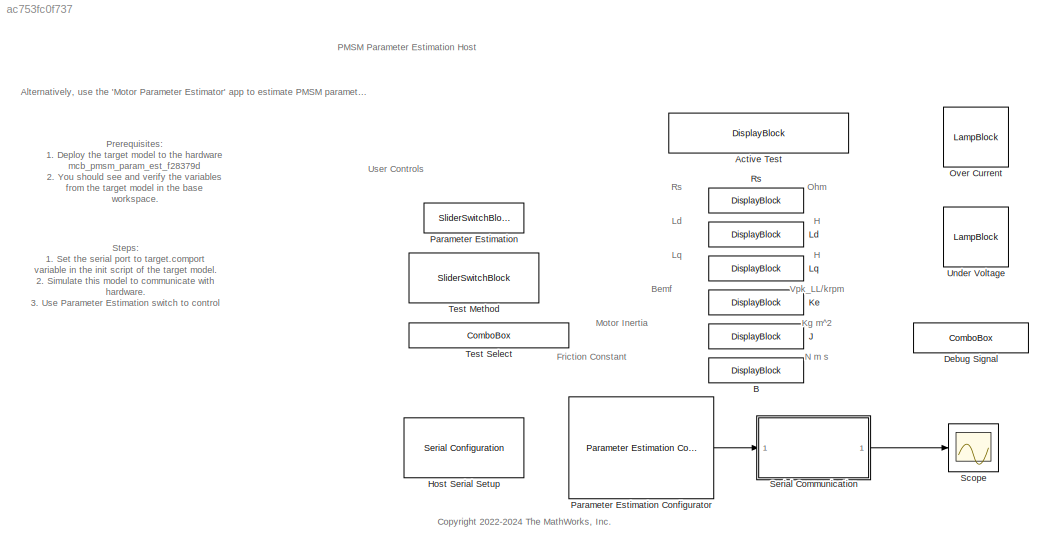
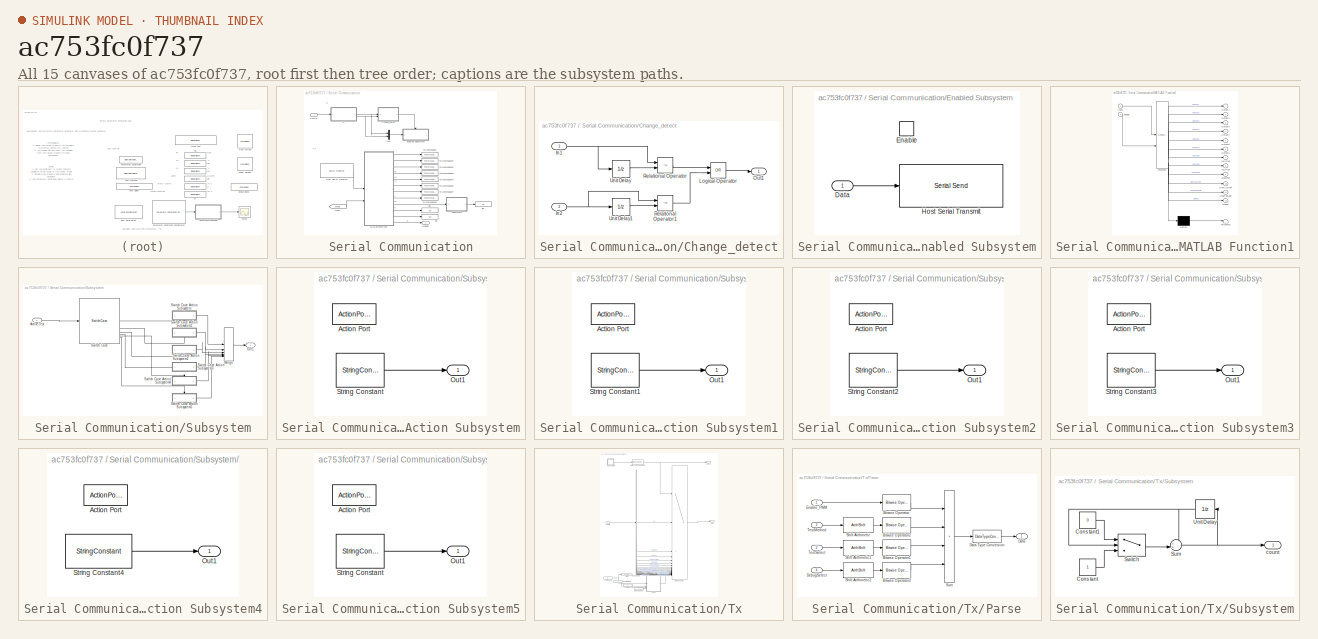
[diagram: thumbnail index - all 15 canvases of the model, root first then tree order]
MODEL slx_ac753fc0f737
KIND model
CONFIG AbsTol = auto
CONFIG EnableMultiTasking = on
CONFIG FixedStep = auto
CONFIG MaxStep = auto
CONFIG MinStep = auto
CONFIG RelTol = 1e-3
CONFIG SampleTimeConstraint = Unconstrained
CONFIG SolverName = FixedStepDiscrete
CONFIG StartTime = 0.0
CONFIG StopFcn = motorParam.p = motor.p;\nmotorParam.nomCurrent = motor.I_rated;\nmotorParam.PositionOffset = motor.PositionOffset;\nmotorParam.QEPSlits = motor.QEPSlits;\nmcb_param_est_StopFunc(bdroot);
CONFIG StopTime = inf
BLOCK [DisplayBlock] Active Test
  LabelPosition = Hide
  Transparency = 1
BLOCK [DisplayBlock] B
  LabelPosition = Hide
  Transparency = 1
BLOCK [ComboBox] Debug Signal
  LabelPosition = Hide
  SelectedLabel = Ia
BLOCK [Reference] Host Serial Setup  REF=instrumentseriallib/Serial Configuration
  LibrarySourceBlock = mcblib/Protection and Diagnostics/Host Serial Setup
  Priority = -99
  SourceBlock = instrumentseriallib/Serial Configuration
  SourceType = system.SerialConfiguration
BLOCK [DisplayBlock] J
  LabelPosition = Hide
  Transparency = 1
BLOCK [DisplayBlock] Ke
  LabelPosition = Hide
  Transparency = 1
BLOCK [DisplayBlock] Ld
  LabelPosition = Hide
  Transparency = 1
BLOCK [DisplayBlock] Lq
  LabelPosition = Hide
  Transparency = 1
BLOCK [LampBlock] Over Current
  LabelPosition = Hide
BLOCK [SliderSwitchBlock] Parameter Estimation
  LabelPosition = Hide
BLOCK [Reference] Parameter Estimation Configurator  REF=mcbpmsmparamestlib/Parameter Estimation Configurator
  LibrarySourceBlock = mcblib/Parameter Estimation/PMSM Parameter Estimation/Parameter Estimation Configurator
  SourceBlock = mcbpmsmparamestlib/Parameter Estimation Configurator
  SourceType = PMSM Parameter Estimation Configurator
BLOCK [DisplayBlock] Rs
  LabelPosition = Hide
  Transparency = 1
BLOCK [Scope] Scope
  Floating = off
  NumInputPorts = 1
  ScopeSpecificationString = Simulink.scopes.TimeScopeBlockCfg('CurrentConfiguration', extmgr.ConfigurationSet(extmgr.Configuration('Core','General UI',true),extmgr.Configuration('Core','Source UI',true),extmgr.Configuration('Sources','WiredSimulink',true),extmgr.Configuration('Visuals','Time Domain',true,'InputProcessing','FrameProcessing','SerializedDisplays',{struct('MinYLimReal','-27.19762','MaxYLimReal','3.06862','YLabel...<+1457ch>
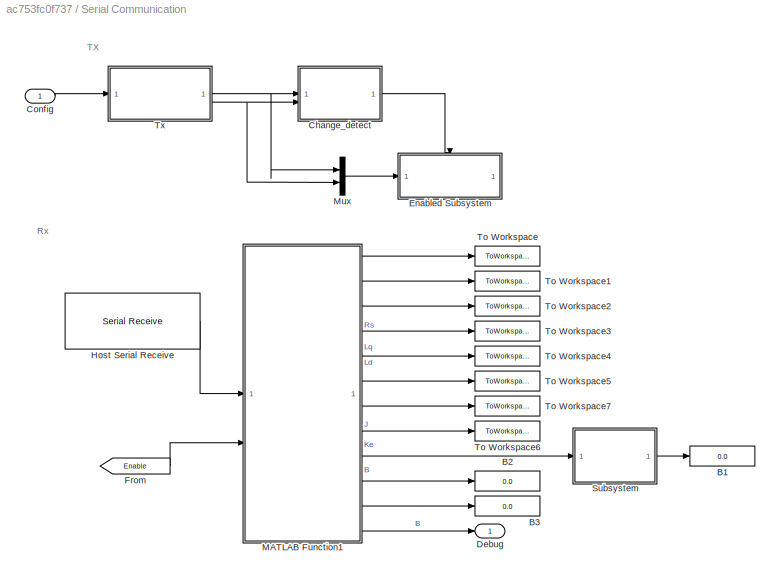
BLOCK [SubSystem] Serial Communication
BLOCK [Display] Serial Communication/B1
  Decimation = 1
BLOCK [Display] Serial Communication/B2
  Decimation = 1
BLOCK [Display] Serial Communication/B3
  Decimation = 1
BLOCK [SubSystem] Serial Communication/Change_detect
BLOCK [Inport] Serial Communication/Change_detect/In1
BLOCK [Inport] Serial Communication/Change_detect/In2
  Port = 2
BLOCK [Logic] Serial Communication/Change_detect/Logical Operator
  AllPortsSameDT = off
  Operator = OR
  OutDataTypeStr = boolean
BLOCK [Outport] Serial Communication/Change_detect/Out1
  VectorParamsAs1DForOutWhenUnconnected = off
BLOCK [RelationalOperator] Serial Communication/Change_detect/Relational Operator
  InputSameDT = off
  Operator = ~=
  OutDataTypeStr = boolean
BLOCK [RelationalOperator] Serial Communication/Change_detect/Relational Operator1
  InputSameDT = off
  Operator = ~=
  OutDataTypeStr = boolean
BLOCK [UnitDelay] Serial Communication/Change_detect/Unit Delay
  HasFrameUpgradeWarning = on
  InitialCondition = 0.5
  SampleTime = -1
BLOCK [UnitDelay] Serial Communication/Change_detect/Unit Delay1
  HasFrameUpgradeWarning = on
  SampleTime = -1
BLOCK [Inport] Serial Communication/Config
BLOCK [Outport] Serial Communication/Debug
BLOCK [SubSystem] Serial Communication/Enabled Subsystem
  TreatAsAtomicUnit = on
BLOCK [Inport] Serial Communication/Enabled Subsystem/Data
BLOCK [EnablePort] Serial Communication/Enabled Subsystem/Enable
BLOCK [Reference] Serial Communication/Enabled Subsystem/Host Serial Transmit  REF=instrumentseriallib/Serial Send
  LibrarySourceBlock = mcblib/Protection and Diagnostics/Host Serial Transmit
  SourceBlock = instrumentseriallib/Serial Send
  SourceType = system.SerialSend
BLOCK [From] Serial Communication/From
  GotoTag = Enable
  TagVisibility = global
BLOCK [Reference] Serial Communication/Host Serial Receive  REF=instrumentseriallib/Serial Receive
  LibrarySourceBlock = mcblib/Protection and Diagnostics/Host Serial Receive
  SourceBlock = instrumentseriallib/Serial Receive
  SourceType = system.SerialReceive
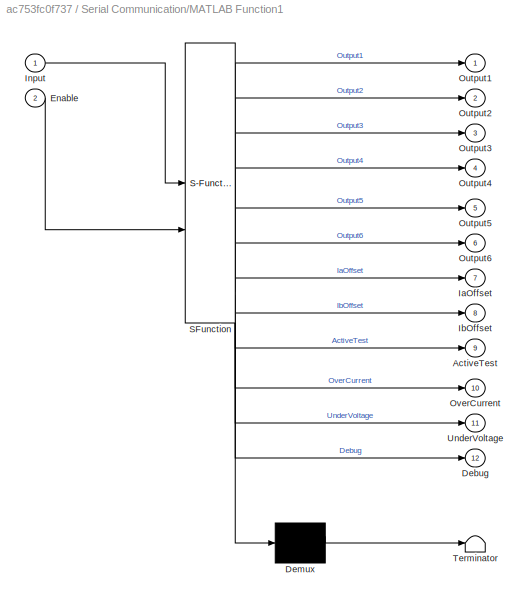
BLOCK [SubSystem] Serial Communication/MATLAB Function1
  ErrorFcn = Stateflow.Translate.translate
  PermitHierarchicalResolution = ExplicitOnly
  SFBlockType = MATLAB Function
  TreatAsAtomicUnit = on
BLOCK [Demux] Serial Communication/MATLAB Function1/ Demux 
  Outputs = 1
BLOCK [S-Function] Serial Communication/MATLAB Function1/ SFunction 
  EnableBusSupport = off
  FunctionName = sf_sfun
  PortCounts = [2 13]
  SFcnIsStateOwnerBlock = off
  SFunctionDeploymentMode = off
  Tag = Stateflow S-Function 2
BLOCK [Terminator] Serial Communication/MATLAB Function1/ Terminator 
BLOCK [Outport] Serial Communication/MATLAB Function1/ActiveTest
  Port = 9
BLOCK [Outport] Serial Communication/MATLAB Function1/Debug
  Port = 12
BLOCK [Inport] Serial Communication/MATLAB Function1/Enable
  Port = 2
BLOCK [Outport] Serial Communication/MATLAB Function1/IaOffset
  Port = 7
BLOCK [Outport] Serial Communication/MATLAB Function1/IbOffset
  Port = 8
BLOCK [Inport] Serial Communication/MATLAB Function1/Input
BLOCK [Outport] Serial Communication/MATLAB Function1/Output1
BLOCK [Outport] Serial Communication/MATLAB Function1/Output2
  Port = 2
BLOCK [Outport] Serial Communication/MATLAB Function1/Output3
  Port = 3
BLOCK [Outport] Serial Communication/MATLAB Function1/Output4
  Port = 4
BLOCK [Outport] Serial Communication/MATLAB Function1/Output5
  Port = 5
BLOCK [Outport] Serial Communication/MATLAB Function1/Output6
  Port = 6
BLOCK [Outport] Serial Communication/MATLAB Function1/OverCurrent
  Port = 10
BLOCK [Outport] Serial Communication/MATLAB Function1/UnderVoltage
  Port = 11
BLOCK [Mux] Serial Communication/Mux
  DisplayOption = bar
  Inputs = 2
BLOCK [SubSystem] Serial Communication/Subsystem
BLOCK [Inport] Serial Communication/Subsystem/ActiveTest
BLOCK [Merge] Serial Communication/Subsystem/Merge
  Inputs = 6
BLOCK [Outport] Serial Communication/Subsystem/Out1
BLOCK [SwitchCase] Serial Communication/Subsystem/Switch Case
  CaseConditions = {0,1,2,3,4}
BLOCK [SubSystem] Serial Communication/Subsystem/Switch Case Action Subsystem
  TreatAsAtomicUnit = on
BLOCK [ActionPort] Serial Communication/Subsystem/Switch Case Action Subsystem/Action Port
  ActionPortLabel = case [ 0 ]:
BLOCK [Outport] Serial Communication/Subsystem/Switch Case Action Subsystem/Out1
BLOCK [StringConstant] Serial Communication/Subsystem/Switch Case Action Subsystem/String Constant
  String = "Inactive"
BLOCK [SubSystem] Serial Communication/Subsystem/Switch Case Action Subsystem1
  TreatAsAtomicUnit = on
BLOCK [ActionPort] Serial Communication/Subsystem/Switch Case Action Subsystem1/Action Port
  ActionPortLabel = case [ 1 ]:
BLOCK [Outport] Serial Communication/Subsystem/Switch Case Action Subsystem1/Out1
BLOCK [StringConstant] Serial Communication/Subsystem/Switch Case Action Subsystem1/String Constant1
  String = "Rs Test"
BLOCK [SubSystem] Serial Communication/Subsystem/Switch Case Action Subsystem2
  TreatAsAtomicUnit = on
BLOCK [ActionPort] Serial Communication/Subsystem/Switch Case Action Subsystem2/Action Port
  ActionPortLabel = case [ 2 ]:
BLOCK [Outport] Serial Communication/Subsystem/Switch Case Action Subsystem2/Out1
BLOCK [StringConstant] Serial Communication/Subsystem/Switch Case Action Subsystem2/String Constant2
  String = "Ld Test"
BLOCK [SubSystem] Serial Communication/Subsystem/Switch Case Action Subsystem3
  TreatAsAtomicUnit = on
BLOCK [ActionPort] Serial Communication/Subsystem/Switch Case Action Subsystem3/Action Port
  ActionPortLabel = case [ 3 ]:
BLOCK [Outport] Serial Communication/Subsystem/Switch Case Action Subsystem3/Out1
BLOCK [StringConstant] Serial Communication/Subsystem/Switch Case Action Subsystem3/String Constant3
  String = "Lq Test"
BLOCK [SubSystem] Serial Communication/Subsystem/Switch Case Action Subsystem4
  TreatAsAtomicUnit = on
BLOCK [ActionPort] Serial Communication/Subsystem/Switch Case Action Subsystem4/Action Port
  ActionPortLabel = case [ 4 ]:
BLOCK [Outport] Serial Communication/Subsystem/Switch Case Action Subsystem4/Out1
BLOCK [StringConstant] Serial Communication/Subsystem/Switch Case Action Subsystem4/String Constant4
  String = "Ke, J, B Test"
BLOCK [SubSystem] Serial Communication/Subsystem/Switch Case Action Subsystem5
  TreatAsAtomicUnit = on
BLOCK [ActionPort] Serial Communication/Subsystem/Switch Case Action Subsystem5/Action Port
  ActionPortLabel = default:
BLOCK [Outport] Serial Communication/Subsystem/Switch Case Action Subsystem5/Out1
BLOCK [StringConstant] Serial Communication/Subsystem/Switch Case Action Subsystem5/String Constant
  String = "Inactive"
BLOCK [ToWorkspace] Serial Communication/To Workspace
  MaxDataPoints = 1
  SampleTime = -1
  Save2DSignal = 2-D array (concatenate along first dimension)
  VariableName = Rs
BLOCK [ToWorkspace] Serial Communication/To Workspace1
  MaxDataPoints = 1
  SampleTime = -1
  Save2DSignal = 2-D array (concatenate along first dimension)
  VariableName = Ld
BLOCK [ToWorkspace] Serial Communication/To Workspace2
  MaxDataPoints = 1
  SampleTime = -1
  Save2DSignal = 2-D array (concatenate along first dimension)
  VariableName = Lq
BLOCK [ToWorkspace] Serial Communication/To Workspace3
  MaxDataPoints = 1
  SampleTime = -1
  Save2DSignal = 2-D array (concatenate along first dimension)
  VariableName = Ke
BLOCK [ToWorkspace] Serial Communication/To Workspace4
  MaxDataPoints = 1
  SampleTime = -1
  Save2DSignal = 2-D array (concatenate along first dimension)
  VariableName = J
BLOCK [ToWorkspace] Serial Communication/To Workspace5
  MaxDataPoints = 1
  SampleTime = -1
  Save2DSignal = 2-D array (concatenate along first dimension)
  VariableName = B
BLOCK [ToWorkspace] Serial Communication/To Workspace6
  MaxDataPoints = 1
  SampleTime = -1
  Save2DSignal = 2-D array (concatenate along first dimension)
  VariableName = Ib_avg_cal
BLOCK [ToWorkspace] Serial Communication/To Workspace7
  MaxDataPoints = 1
  SampleTime = -1
  Save2DSignal = 2-D array (concatenate along first dimension)
  VariableName = Ia_avg_cal
BLOCK [SubSystem] Serial Communication/Tx
BLOCK [BusSelector] Serial Communication/Tx/Bus Selector
  OutputSignals = P,NRated,IRated,ImaxInverter,RBoard,ISenseGain,VSenseGain,Ts,FreqMax,FreqMin,FreqStepSweep,FreqStepEst,FreqNum,KeTime,KeSpeed,KpKiInputEnable,Kp,Ki,IqRefFoc,JSpeedLow,CurrMeasDelay
BLOCK [Inport] Serial Communication/Tx/Config
BLOCK [Outport] Serial Communication/Tx/Count
BLOCK [Outport] Serial Communication/Tx/Data
  Port = 2
BLOCK [DataTypeConversion] Serial Communication/Tx/Data Type Conversion
  OutDataTypeStr = dataType
  RndMeth = Simplest
  SaturateOnIntegerOverflow = off
BLOCK [Constant] Serial Communication/Tx/Debug Select
  OutDataTypeStr = uint16
  SampleTime = 600 * Ts
BLOCK [Goto] Serial Communication/Tx/Goto
  GotoTag = Enable
  TagVisibility = global
BLOCK [MultiPortSwitch] Serial Communication/Tx/Index Vector
  InputSameDT = off
  Inputs = 22
  OutDataTypeStr = dataType
  RndMeth = Simplest
  SaturateOnIntegerOverflow = off
BLOCK [SubSystem] Serial Communication/Tx/Parse
BLOCK [Reference] Serial Communication/Tx/Parse/Bitwise Operator  REF=simulink/Logic and Bit
Operations/Bitwise
Operator
  SourceBlock = simulink/Logic and Bit\nOperations/Bitwise\nOperator
  SourceType = Bitwise Operator
BLOCK [Reference] Serial Communication/Tx/Parse/Bitwise Operator1  REF=simulink/Logic and Bit
Operations/Bitwise
Operator
  SourceBlock = simulink/Logic and Bit\nOperations/Bitwise\nOperator
  SourceType = Bitwise Operator
BLOCK [Reference] Serial Communication/Tx/Parse/Bitwise Operator2  REF=simulink/Logic and Bit
Operations/Bitwise
Operator
  SourceBlock = simulink/Logic and Bit\nOperations/Bitwise\nOperator
  SourceType = Bitwise Operator
BLOCK [Reference] Serial Communication/Tx/Parse/Bitwise Operator3  REF=simulink/Logic and Bit
Operations/Bitwise
Operator
  SourceBlock = simulink/Logic and Bit\nOperations/Bitwise\nOperator
  SourceType = Bitwise Operator
BLOCK [Outport] Serial Communication/Tx/Parse/Data
BLOCK [DataTypeConversion] Serial Communication/Tx/Parse/Data Type Conversion
  OutDataTypeStr = dataType
  RndMeth = Simplest
  SaturateOnIntegerOverflow = off
BLOCK [Inport] Serial Communication/Tx/Parse/DebugSelect
  Port = 4
BLOCK [Inport] Serial Communication/Tx/Parse/Enable_PWM
BLOCK [ArithShift] Serial Communication/Tx/Parse/Shift Arithmetic
  BitShiftNumber = -1
  InputPortMap = u0
BLOCK [ArithShift] Serial Communication/Tx/Parse/Shift Arithmetic1
  BitShiftNumber = -4
  InputPortMap = u0
BLOCK [ArithShift] Serial Communication/Tx/Parse/Shift Arithmetic2
  BitShiftNumber = -8
  InputPortMap = u0
BLOCK [Sum] Serial Communication/Tx/Parse/Sum
  IconShape = rectangular
  Inputs = ++++
BLOCK [Inport] Serial Communication/Tx/Parse/TestMethod
  Port = 2
BLOCK [Inport] Serial Communication/Tx/Parse/TestSelect
  Port = 3
BLOCK [SubSystem] Serial Communication/Tx/Subsystem
BLOCK [Constant] Serial Communication/Tx/Subsystem/Constant
  OutDataTypeStr = uint8
  SampleTime = sampleTime
BLOCK [Constant] Serial Communication/Tx/Subsystem/Constant1
  OutDataTypeStr = uint8
  SampleTime = sampleTime
  Value = 0
BLOCK [Sum] Serial Communication/Tx/Subsystem/Sum
  AccumDataTypeStr = uint8
  Inputs = ++|
  OutDataTypeStr = uint8
  RndMeth = Simplest
BLOCK [Switch] Serial Communication/Tx/Subsystem/Switch
  Criteria = u2 > Threshold
  InputSameDT = off
  OutDataTypeStr = uint8
  RndMeth = Simplest
  SaturateOnIntegerOverflow = off
  Threshold = upperLimit-1
BLOCK [UnitDelay] Serial Communication/Tx/Subsystem/Unit Delay
  HasFrameUpgradeWarning = on
  SampleTime = -1
BLOCK [Outport] Serial Communication/Tx/Subsystem/count
BLOCK [Constant] Serial Communication/Tx/Test Enable
  OutDataTypeStr = uint16
  SampleTime = 600 * Ts
  Value = 0
  VectorParams1D = off
BLOCK [Constant] Serial Communication/Tx/Test Method
  OutDataTypeStr = uint16
  SampleTime = 600 * Ts
  VectorParams1D = off
BLOCK [Constant] Serial Communication/Tx/Test Select
  OutDataTypeStr = uint16
  SampleTime = 600 * Ts
  Value = 0
BLOCK [SliderSwitchBlock] Test Method
  LabelPosition = Hide
BLOCK [ComboBox] Test Select
  LabelPosition = Hide
  SelectedLabel = No Test
BLOCK [LampBlock] Under Voltage
  LabelPosition = Hide
ANNOTATION (root): PMSM Parameter Estimation Host
ANNOTATION (root): <copyright redacted>
ANNOTATION (root): Alternatively, use the 'Motor Parameter Estimator' app to estimate PMSM parameters on hardware with ease through a unified interface. The app is available under 'Apps > Control Systems' in the Simulink toolstrip.
ANNOTATION (root): Prerequisites: 1. Deploy the target model to the hardware mcb_pmsm_param_est_f28379d 2. You should see and verify the variables from the target model in the base workspace.
ANNOTATION (root): Steps: 1. Set the serial port to target.comport variable in the init script of the target model. 2. Simulate this model to communicate with hardware. 3. Use Parameter Estimation switch to control the parameter estimation tests. 4. Run parameter estimation tests sequentially by selecting Auto for Test Method switch. 5. Select Manual to run the tests individually by selecting in Test Selection radio...<+219ch>
ANNOTATION (root): Bemf
ANNOTATION (root): Friction Constant
ANNOTATION (root): Ld
ANNOTATION (root): Lq
ANNOTATION (root): Motor Inertia
ANNOTATION (root): Rs
ANNOTATION (root): H
ANNOTATION (root): Kg m^2
ANNOTATION (root): N m s
ANNOTATION (root): Ohm
ANNOTATION (root): Vpk_LL/krpm
ANNOTATION (root): User Controls
ANNOTATION Serial Communication: Rx
ANNOTATION Serial Communication: TX
LINE Parameter Estimation Configurator:1 -> Serial Communication:1
NET Serial Communication/Change_detect/In1:1 -> Serial Communication/Change_detect/Relational Operator:1, Serial Communication/Change_detect/Unit Delay:1
NET Serial Communication/Change_detect/In2:1 -> Serial Communication/Change_detect/Relational Operator1:1, Serial Communication/Change_detect/Unit Delay1:1
LINE Serial Communication/Change_detect/Logical Operator:1 -> Serial Communication/Change_detect/Out1:1
LINE Serial Communication/Change_detect/Relational Operator1:1 -> Serial Communication/Change_detect/Logical Operator:2
LINE Serial Communication/Change_detect/Relational Operator:1 -> Serial Communication/Change_detect/Logical Operator:1
LINE Serial Communication/Change_detect/Unit Delay1:1 -> Serial Communication/Change_detect/Relational Operator1:2
LINE Serial Communication/Change_detect/Unit Delay:1 -> Serial Communication/Change_detect/Relational Operator:2
LINE Serial Communication/Change_detect:1 -> Serial Communication/Enabled Subsystem:enable
LINE Serial Communication/Config:1 -> Serial Communication/Tx:1
LINE Serial Communication/Enabled Subsystem/Data:1 -> Serial Communication/Enabled Subsystem/Host Serial Transmit:1
LINE Serial Communication/From:1 -> Serial Communication/MATLAB Function1:2
LINE Serial Communication/Host Serial Receive:1 -> Serial Communication/MATLAB Function1:1
LINE Serial Communication/MATLAB Function1:1 -> Serial Communication/To Workspace:1
LINE Serial Communication/MATLAB Function1:10 -> Serial Communication/B2:1
LINE Serial Communication/MATLAB Function1:11 -> Serial Communication/B3:1
LINE Serial Communication/MATLAB Function1:12 -> Serial Communication/Debug:1
LINE Serial Communication/MATLAB Function1:2 -> Serial Communication/To Workspace1:1
LINE Serial Communication/MATLAB Function1:3 -> Serial Communication/To Workspace2:1
LINE Serial Communication/MATLAB Function1:4 -> Serial Communication/To Workspace3:1
LINE Serial Communication/MATLAB Function1:5 -> Serial Communication/To Workspace4:1
LINE Serial Communication/MATLAB Function1:6 -> Serial Communication/To Workspace5:1
LINE Serial Communication/MATLAB Function1:7 -> Serial Communication/To Workspace7:1
LINE Serial Communication/MATLAB Function1:8 -> Serial Communication/To Workspace6:1
LINE Serial Communication/MATLAB Function1:9 -> Serial Communication/Subsystem:1
LINE Serial Communication/Mux:1 -> Serial Communication/Enabled Subsystem:1
LINE Serial Communication/Subsystem/ActiveTest:1 -> Serial Communication/Subsystem/Switch Case:1
LINE Serial Communication/Subsystem/Merge:1 -> Serial Communication/Subsystem/Out1:1
LINE Serial Communication/Subsystem/Switch Case Action Subsystem/String Constant:1 -> Serial Communication/Subsystem/Switch Case Action Subsystem/Out1:1
LINE Serial Communication/Subsystem/Switch Case Action Subsystem1/String Constant1:1 -> Serial Communication/Subsystem/Switch Case Action Subsystem1/Out1:1
LINE Serial Communication/Subsystem/Switch Case Action Subsystem1:1 -> Serial Communication/Subsystem/Merge:2
LINE Serial Communication/Subsystem/Switch Case Action Subsystem2/String Constant2:1 -> Serial Communication/Subsystem/Switch Case Action Subsystem2/Out1:1
LINE Serial Communication/Subsystem/Switch Case Action Subsystem2:1 -> Serial Communication/Subsystem/Merge:3
LINE Serial Communication/Subsystem/Switch Case Action Subsystem3/String Constant3:1 -> Serial Communication/Subsystem/Switch Case Action Subsystem3/Out1:1
LINE Serial Communication/Subsystem/Switch Case Action Subsystem3:1 -> Serial Communication/Subsystem/Merge:4
LINE Serial Communication/Subsystem/Switch Case Action Subsystem4/String Constant4:1 -> Serial Communication/Subsystem/Switch Case Action Subsystem4/Out1:1
LINE Serial Communication/Subsystem/Switch Case Action Subsystem4:1 -> Serial Communication/Subsystem/Merge:5
LINE Serial Communication/Subsystem/Switch Case Action Subsystem5/String Constant:1 -> Serial Communication/Subsystem/Switch Case Action Subsystem5/Out1:1
LINE Serial Communication/Subsystem/Switch Case Action Subsystem5:1 -> Serial Communication/Subsystem/Merge:6
LINE Serial Communication/Subsystem/Switch Case Action Subsystem:1 -> Serial Communication/Subsystem/Merge:1
LINE Serial Communication/Subsystem/Switch Case:1 -> Serial Communication/Subsystem/Switch Case Action Subsystem:ifaction
LINE Serial Communication/Subsystem/Switch Case:2 -> Serial Communication/Subsystem/Switch Case Action Subsystem1:ifaction
LINE Serial Communication/Subsystem/Switch Case:3 -> Serial Communication/Subsystem/Switch Case Action Subsystem2:ifaction
LINE Serial Communication/Subsystem/Switch Case:4 -> Serial Communication/Subsystem/Switch Case Action Subsystem3:ifaction
LINE Serial Communication/Subsystem/Switch Case:5 -> Serial Communication/Subsystem/Switch Case Action Subsystem4:ifaction
LINE Serial Communication/Subsystem/Switch Case:6 -> Serial Communication/Subsystem/Switch Case Action Subsystem5:ifaction
LINE Serial Communication/Subsystem:1 -> Serial Communication/B1:1
LINE Serial Communication/Tx/Bus Selector:1 -> Serial Communication/Tx/Index Vector:2
LINE Serial Communication/Tx/Bus Selector:10 -> Serial Communication/Tx/Index Vector:11
LINE Serial Communication/Tx/Bus Selector:11 -> Serial Communication/Tx/Index Vector:12
LINE Serial Communication/Tx/Bus Selector:12 -> Serial Communication/Tx/Index Vector:13
LINE Serial Communication/Tx/Bus Selector:13 -> Serial Communication/Tx/Index Vector:14
LINE Serial Communication/Tx/Bus Selector:14 -> Serial Communication/Tx/Index Vector:15
LINE Serial Communication/Tx/Bus Selector:15 -> Serial Communication/Tx/Index Vector:16
LINE Serial Communication/Tx/Bus Selector:16 -> Serial Communication/Tx/Index Vector:17
LINE Serial Communication/Tx/Bus Selector:17 -> Serial Communication/Tx/Index Vector:18
LINE Serial Communication/Tx/Bus Selector:18 -> Serial Communication/Tx/Index Vector:19
LINE Serial Communication/Tx/Bus Selector:19 -> Serial Communication/Tx/Index Vector:20
LINE Serial Communication/Tx/Bus Selector:2 -> Serial Communication/Tx/Index Vector:3
LINE Serial Communication/Tx/Bus Selector:20 -> Serial Communication/Tx/Index Vector:21
LINE Serial Communication/Tx/Bus Selector:21 -> Serial Communication/Tx/Index Vector:22
LINE Serial Communication/Tx/Bus Selector:3 -> Serial Communication/Tx/Index Vector:4
LINE Serial Communication/Tx/Bus Selector:4 -> Serial Communication/Tx/Index Vector:5
LINE Serial Communication/Tx/Bus Selector:5 -> Serial Communication/Tx/Index Vector:6
LINE Serial Communication/Tx/Bus Selector:6 -> Serial Communication/Tx/Index Vector:7
LINE Serial Communication/Tx/Bus Selector:7 -> Serial Communication/Tx/Index Vector:8
LINE Serial Communication/Tx/Bus Selector:8 -> Serial Communication/Tx/Index Vector:9
LINE Serial Communication/Tx/Bus Selector:9 -> Serial Communication/Tx/Index Vector:10
LINE Serial Communication/Tx/Config:1 -> Serial Communication/Tx/Bus Selector:1
NET Serial Communication/Tx/Data Type Conversion:1 -> Serial Communication/Tx/Count:1, Serial Communication/Tx/Index Vector:1
LINE Serial Communication/Tx/Debug Select:1 -> Serial Communication/Tx/Parse:4
LINE Serial Communication/Tx/Index Vector:1 -> Serial Communication/Tx/Data:1
LINE Serial Communication/Tx/Parse/Bitwise Operator1:1 -> Serial Communication/Tx/Parse/Sum:3
LINE Serial Communication/Tx/Parse/Bitwise Operator2:1 -> Serial Communication/Tx/Parse/Sum:2
LINE Serial Communication/Tx/Parse/Bitwise Operator3:1 -> Serial Communication/Tx/Parse/Sum:4
LINE Serial Communication/Tx/Parse/Bitwise Operator:1 -> Serial Communication/Tx/Parse/Sum:1
LINE Serial Communication/Tx/Parse/Data Type Conversion:1 -> Serial Communication/Tx/Parse/Data:1
LINE Serial Communication/Tx/Parse/DebugSelect:1 -> Serial Communication/Tx/Parse/Shift Arithmetic2:1
LINE Serial Communication/Tx/Parse/Enable_PWM:1 -> Serial Communication/Tx/Parse/Bitwise Operator:1
LINE Serial Communication/Tx/Parse/Shift Arithmetic1:1 -> Serial Communication/Tx/Parse/Bitwise Operator1:1
LINE Serial Communication/Tx/Parse/Shift Arithmetic2:1 -> Serial Communication/Tx/Parse/Bitwise Operator3:1
LINE Serial Communication/Tx/Parse/Shift Arithmetic:1 -> Serial Communication/Tx/Parse/Bitwise Operator2:1
LINE Serial Communication/Tx/Parse/Sum:1 -> Serial Communication/Tx/Parse/Data Type Conversion:1
LINE Serial Communication/Tx/Parse/TestMethod:1 -> Serial Communication/Tx/Parse/Shift Arithmetic:1
LINE Serial Communication/Tx/Parse/TestSelect:1 -> Serial Communication/Tx/Parse/Shift Arithmetic1:1
LINE Serial Communication/Tx/Parse:1 -> Serial Communication/Tx/Index Vector:23
LINE Serial Communication/Tx/Subsystem/Constant1:1 -> Serial Communication/Tx/Subsystem/Switch:1
LINE Serial Communication/Tx/Subsystem/Constant:1 -> Serial Communication/Tx/Subsystem/Switch:3
NET Serial Communication/Tx/Subsystem/Sum:1 -> Serial Communication/Tx/Subsystem/Unit Delay:1, Serial Communication/Tx/Subsystem/count:1
LINE Serial Communication/Tx/Subsystem/Switch:1 -> Serial Communication/Tx/Subsystem/Sum:2
NET Serial Communication/Tx/Subsystem/Unit Delay:1 -> Serial Communication/Tx/Subsystem/Sum:1, Serial Communication/Tx/Subsystem/Switch:2
LINE Serial Communication/Tx/Subsystem:1 -> Serial Communication/Tx/Data Type Conversion:1
NET Serial Communication/Tx/Test Enable:1 -> Serial Communication/Tx/Goto:1, Serial Communication/Tx/Parse:1
LINE Serial Communication/Tx/Test Method:1 -> Serial Communication/Tx/Parse:2
LINE Serial Communication/Tx/Test Select:1 -> Serial Communication/Tx/Parse:3
NET Serial Communication/Tx:1 -> Serial Communication/Change_detect:1, Serial Communication/Mux:1
NET Serial Communication/Tx:2 -> Serial Communication/Change_detect:2, Serial Communication/Mux:2
LINE Serial Communication:1 -> Scope:1
note: NET lines group one-source signal fan-out (src -> all destinations, sorted); 1:1 wires keep LINE
CHART Serial Communication/MATLAB Function1 states=1 transitions=1
  STATE_LABEL 'eML_blk_kernel()'
  STATE_LABEL "SCRIPT:\nfunction [ Output1, Output2, Output3, Output4, Output5, Output6, IaOffset, IbOffset, ActiveTest,  OverCurrent, UnderVoltage, Debug] = unBuf(Input, Enable)\n\ncoder.extrinsic('message', 'msgbox', 'set_param', 'error');\n\nOutput1 = Input(1, 1);\nOutput2 = Input(2, 1);\nOutput3 = Input(3, 1);\nOutput4 = Input(4, 1);\nOutput5 = Input(5, 1);\nOutput6 = Input(6, 1);\nIaOffset= Input(7, 1);\nIbOffset= Inpu...<+225ch>"
CHART  states=0 transitions=0
